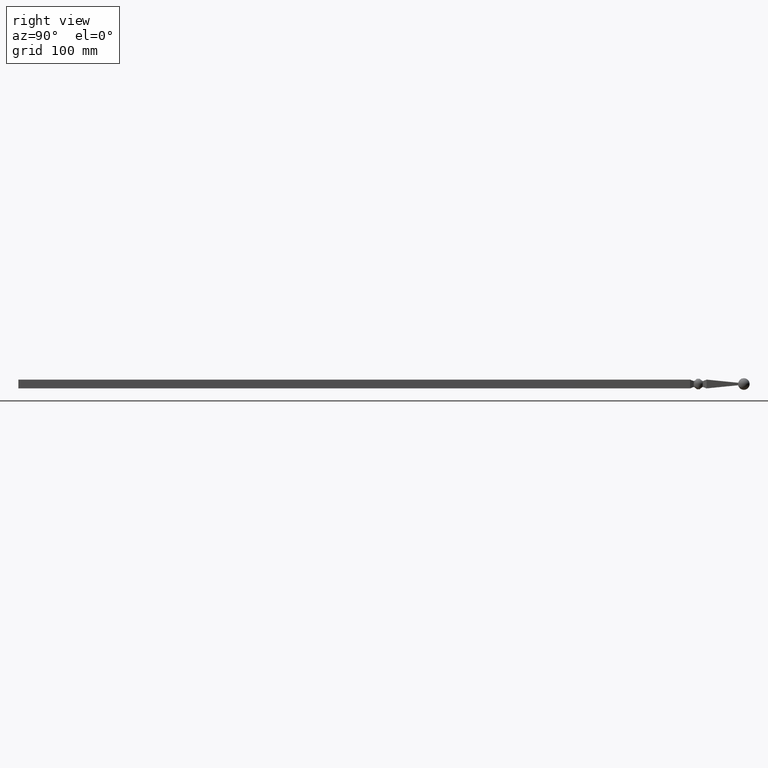
[diagram: clean part render]
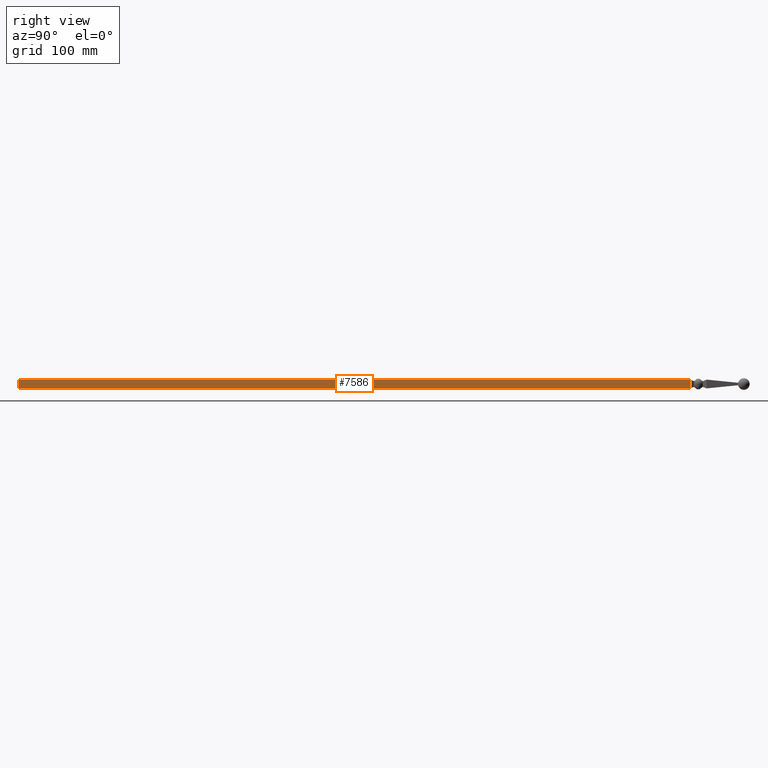
[diagram: same view with one face highlighted and labeled with its STEP entity id]
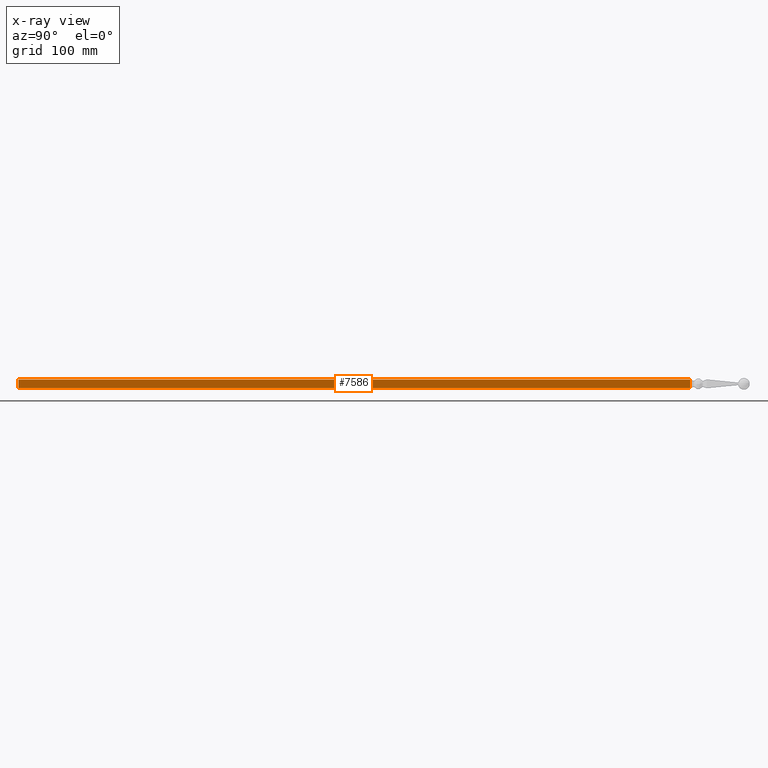
[diagram: x-ray of the same camera — body ghosted, the highlighted face saturated]
A machine part, right view. The second image highlights one B-rep face of the part: STEP entity #7586.
The next image is the same camera in x-ray: the body ghosted, the highlighted face saturated — about 0% of this face is hidden behind the body in this view.
In plain terms, the highlighted planar face has unit normal (-1, 0, 0).
Its self-contained STEP definition (entity closure, byte-faithful):
#88 = VECTOR ( 'NONE', #10540, 1000.000000000000000 ) ;
#414 = DIRECTION ( 'NONE',  ( -0.000000000000000000, 1.000000000000000000, -0.000000000000000000 ) ) ;
#822 = EDGE_CURVE ( 'NONE', #11241, #5389, #11523, .T. ) ;
#998 = CARTESIAN_POINT ( 'NONE',  ( 6.000000000002792433, 918.5000000000000000, 6.000000000000000888 ) ) ;
#1087 = EDGE_CURVE ( 'NONE', #3541, #5389, #2598, .T. ) ;
#2598 = LINE ( 'NONE', #8986, #6720 ) ;
#2671 = CARTESIAN_POINT ( 'NONE',  ( 6.000000000002792433, 0.000000000000000000, -5.999999999999999112 ) ) ;
#2974 = ORIENTED_EDGE ( 'NONE', *, *, #9467, .F. ) ;
#3172 = CARTESIAN_POINT ( 'NONE',  ( 6.000000000002792433, 918.5000000000000000, -5.999999999999999112 ) ) ;
#3541 = VERTEX_POINT ( 'NONE', #12304 ) ;
#4323 = DIRECTION ( 'NONE',  ( -0.000000000000000000, -0.000000000000000000, 1.000000000000000000 ) ) ;
#4362 = LINE ( 'NONE', #5193, #88 ) ;
#4705 = ORIENTED_EDGE ( 'NONE', *, *, #822, .T. ) ;
#4996 = LINE ( 'NONE', #8836, #10272 ) ;
#5193 = CARTESIAN_POINT ( 'NONE',  ( 6.000000000002792433, 0.000000000000000000, -5.999999999999999112 ) ) ;
#5389 = VERTEX_POINT ( 'NONE', #12747 ) ;
#5581 = ORIENTED_EDGE ( 'NONE', *, *, #6877, .T. ) ;
#6351 = PLANE ( 'NONE',  #8154 ) ;
#6720 = VECTOR ( 'NONE', #414, 1000.000000000000000 ) ;
#6770 = DIRECTION ( 'NONE',  ( -0.000000000000000000, 1.000000000000000000, -0.000000000000000000 ) ) ;
#6877 = EDGE_CURVE ( 'NONE', #12141, #11241, #4996, .T. ) ;
#7586 = ADVANCED_FACE ( 'NONE', ( #12471 ), #6351, .F. ) ;
#8129 = ORIENTED_EDGE ( 'NONE', *, *, #1087, .F. ) ;
#8154 = AXIS2_PLACEMENT_3D ( 'NONE', #9571, #12610, #12744 ) ;
#8398 = VECTOR ( 'NONE', #4323, 1000.000000000000000 ) ;
#8836 = CARTESIAN_POINT ( 'NONE',  ( 6.000000000002792433, -16.97056274847707869, -5.999999999999999112 ) ) ;
#8986 = CARTESIAN_POINT ( 'NONE',  ( 6.000000000002792433, -16.97056274847707869, 6.000000000000000888 ) ) ;
#9467 = EDGE_CURVE ( 'NONE', #12141, #3541, #4362, .T. ) ;
#9571 = CARTESIAN_POINT ( 'NONE',  ( 6.000000000002792433, -16.97056274847707869, -5.999999999999999112 ) ) ;
#9827 = EDGE_LOOP ( 'NONE', ( #2974, #5581, #4705, #8129 ) ) ;
#10272 = VECTOR ( 'NONE', #6770, 1000.000000000000000 ) ;
#10540 = DIRECTION ( 'NONE',  ( 0.000000000000000000, 0.000000000000000000, 1.000000000000000000 ) ) ;
#11241 = VERTEX_POINT ( 'NONE', #3172 ) ;
#11523 = LINE ( 'NONE', #998, #8398 ) ;
#12141 = VERTEX_POINT ( 'NONE', #2671 ) ;
#12304 = CARTESIAN_POINT ( 'NONE',  ( 6.000000000002792433, 0.000000000000000000, 6.000000000000000888 ) ) ;
#12471 = FACE_OUTER_BOUND ( 'NONE', #9827, .T. ) ;
#12610 = DIRECTION ( 'NONE',  ( -1.000000000000000000, 0.000000000000000000, 0.000000000000000000 ) ) ;
#12744 = DIRECTION ( 'NONE',  ( 0.000000000000000000, 0.000000000000000000, 1.000000000000000000 ) ) ;
#12747 = CARTESIAN_POINT ( 'NONE',  ( 6.000000000002792433, 918.5000000000000000, 6.000000000000000888 ) ) ;